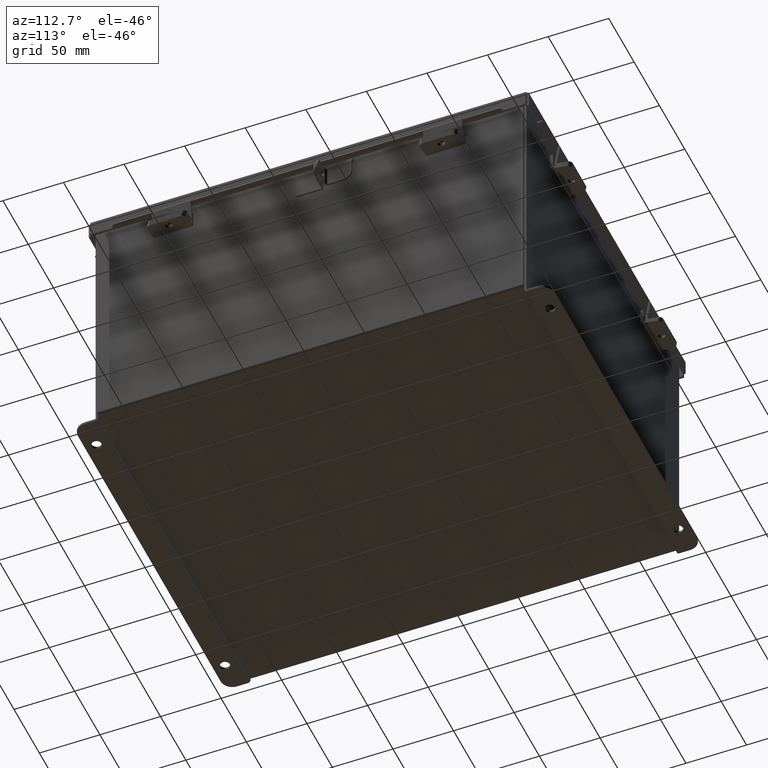
[diagram: clean part render]
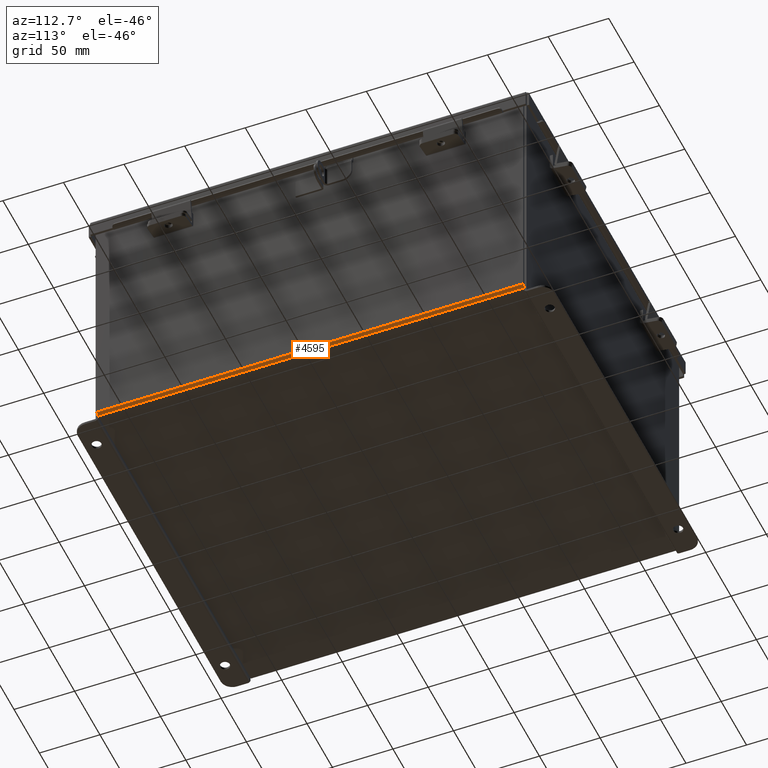
[diagram: same view with one face highlighted and labeled with its STEP entity id]
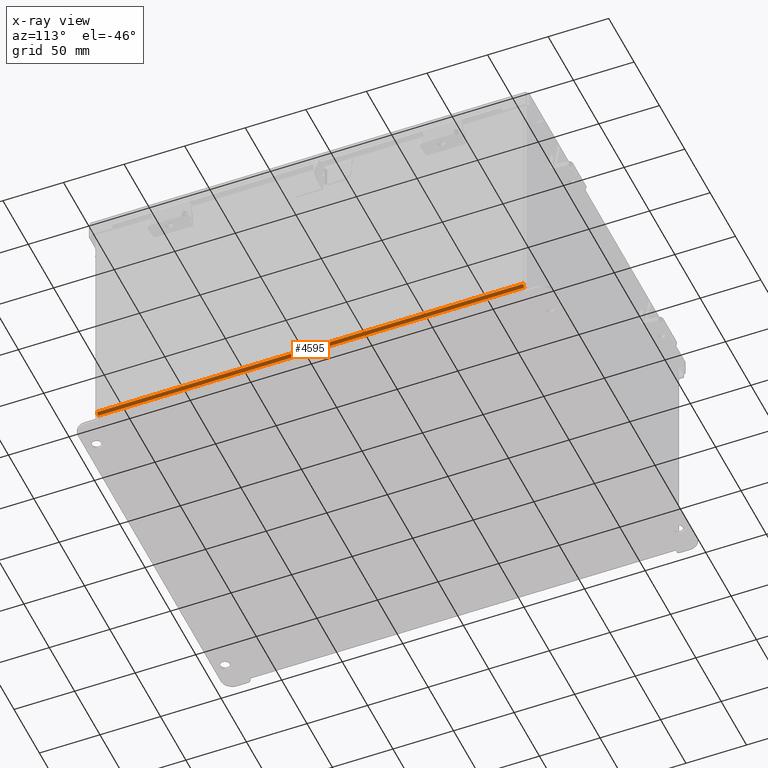
[diagram: x-ray of the same camera — body ghosted, the highlighted face saturated]
A machine part, auxiliary view. The second image highlights one B-rep face of the part: STEP entity #4595.
The next image is the same camera in x-ray: the body ghosted, the highlighted face saturated — about 0% of this face is hidden behind the body in this view.
In plain terms, the highlighted cylindrical surface (edge-blend (fillet) strip) has radius 2.2276 mm, axis along (0, 1, 0).
Its self-contained STEP definition (entity closure, byte-faithful):
#61 = CARTESIAN_POINT ( 'NONE',  ( 5.912300000000000100, 6.925299999999998200, 0.01300000000000015200 ) ) ;
#132 = CIRCLE ( 'NONE', #12118, 0.08770000000000009700 ) ;
#259 = VERTEX_POINT ( 'NONE', #12503 ) ;
#717 = LINE ( 'NONE', #3637, #15066 ) ;
#845 = ORIENTED_EDGE ( 'NONE', *, *, #5351, .F. ) ;
#1574 = CARTESIAN_POINT ( 'NONE',  ( 5.912300000000000100, -6.925300000000000900, -0.07470000000000000300 ) ) ;
#2056 = EDGE_CURVE ( 'NONE', #15172, #259, #10808, .T. ) ;
#2320 = ORIENTED_EDGE ( 'NONE', *, *, #2579, .F. ) ;
#2579 = EDGE_CURVE ( 'NONE', #10511, #15172, #6988, .T. ) ;
#3068 = CYLINDRICAL_SURFACE ( 'NONE', #4168, 0.08770000000000026400 ) ;
#3143 = VECTOR ( 'NONE', #7256, 39.37007874015748100 ) ;
#3277 = EDGE_LOOP ( 'NONE', ( #2320, #845, #13828, #8724 ) ) ;
#3637 = CARTESIAN_POINT ( 'NONE',  ( 6.000000000000000900, -6.925300000000000900, 0.01299999999999984700 ) ) ;
#4168 = AXIS2_PLACEMENT_3D ( 'NONE', #61, #14494, #10189 ) ;
#4595 = ADVANCED_FACE ( 'NONE', ( #14501 ), #3068, .T. ) ;
#4827 = DIRECTION ( 'NONE',  ( -0.0000000000000000000, -1.000000000000000000, -0.0000000000000000000 ) ) ;
#5095 = DIRECTION ( 'NONE',  ( -0.0000000000000000000, -1.000000000000000000, -0.0000000000000000000 ) ) ;
#5351 = EDGE_CURVE ( 'NONE', #14830, #10511, #132, .T. ) ;
#6988 = LINE ( 'NONE', #14383, #3143 ) ;
#7256 = DIRECTION ( 'NONE',  ( -0.0000000000000000000, -1.000000000000000000, -0.0000000000000000000 ) ) ;
#8624 = CARTESIAN_POINT ( 'NONE',  ( 5.912300000000000100, 6.925299999999996500, 0.01300000000000015200 ) ) ;
#8724 = ORIENTED_EDGE ( 'NONE', *, *, #2056, .F. ) ;
#9410 = CARTESIAN_POINT ( 'NONE',  ( 6.000000000000000900, 6.925299999999996500, 0.01299999999999984700 ) ) ;
#9582 = EDGE_CURVE ( 'NONE', #14830, #259, #717, .T. ) ;
#10046 = DIRECTION ( 'NONE',  ( 0.0000000000000000000, 0.0000000000000000000, 1.000000000000000000 ) ) ;
#10157 = DIRECTION ( 'NONE',  ( 0.0000000000000000000, 1.000000000000000000, 0.0000000000000000000 ) ) ;
#10189 = DIRECTION ( 'NONE',  ( 1.000000000000000000, 0.0000000000000000000, -3.480030137311043200E-015 ) ) ;
#10511 = VERTEX_POINT ( 'NONE', #15731 ) ;
#10808 = CIRCLE ( 'NONE', #11567, 0.08770000000000009700 ) ;
#11567 = AXIS2_PLACEMENT_3D ( 'NONE', #13400, #4827, #14833 ) ;
#12118 = AXIS2_PLACEMENT_3D ( 'NONE', #8624, #10157, #10046 ) ;
#12503 = CARTESIAN_POINT ( 'NONE',  ( 6.000000000000000900, -6.925300000000000900, 0.01299999999999984700 ) ) ;
#13400 = CARTESIAN_POINT ( 'NONE',  ( 5.912300000000000100, -6.925300000000000900, 0.01300000000000015200 ) ) ;
#13828 = ORIENTED_EDGE ( 'NONE', *, *, #9582, .T. ) ;
#14383 = CARTESIAN_POINT ( 'NONE',  ( 5.912300000000000100, 6.925299999999998200, -0.07469999999999994700 ) ) ;
#14494 = DIRECTION ( 'NONE',  ( 0.0000000000000000000, 1.000000000000000000, 0.0000000000000000000 ) ) ;
#14501 = FACE_OUTER_BOUND ( 'NONE', #3277, .T. ) ;
#14830 = VERTEX_POINT ( 'NONE', #9410 ) ;
#14833 = DIRECTION ( 'NONE',  ( 0.0000000000000000000, 0.0000000000000000000, 1.000000000000000000 ) ) ;
#15066 = VECTOR ( 'NONE', #5095, 39.37007874015748100 ) ;
#15172 = VERTEX_POINT ( 'NONE', #1574 ) ;
#15731 = CARTESIAN_POINT ( 'NONE',  ( 5.912300000000000100, 6.925299999999996500, -0.07469999999999994700 ) ) ;